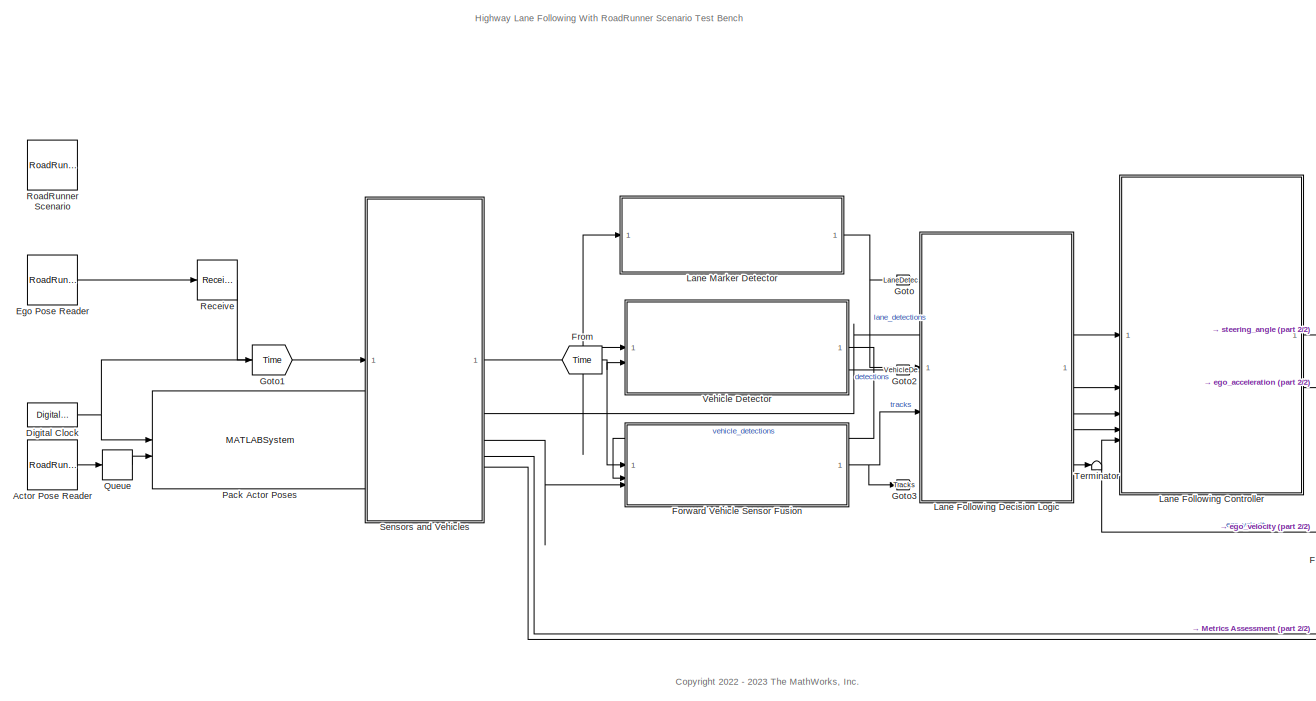
[diagram: root canvas - part 1/2, most of the canvas]
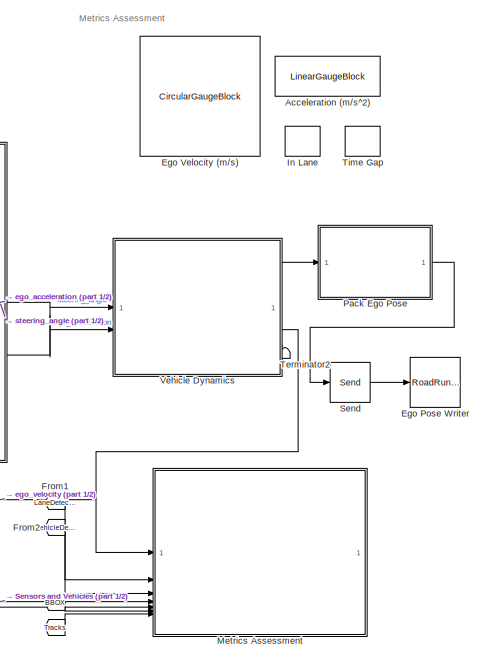
[diagram: root canvas - part 2/2, right side, full height]
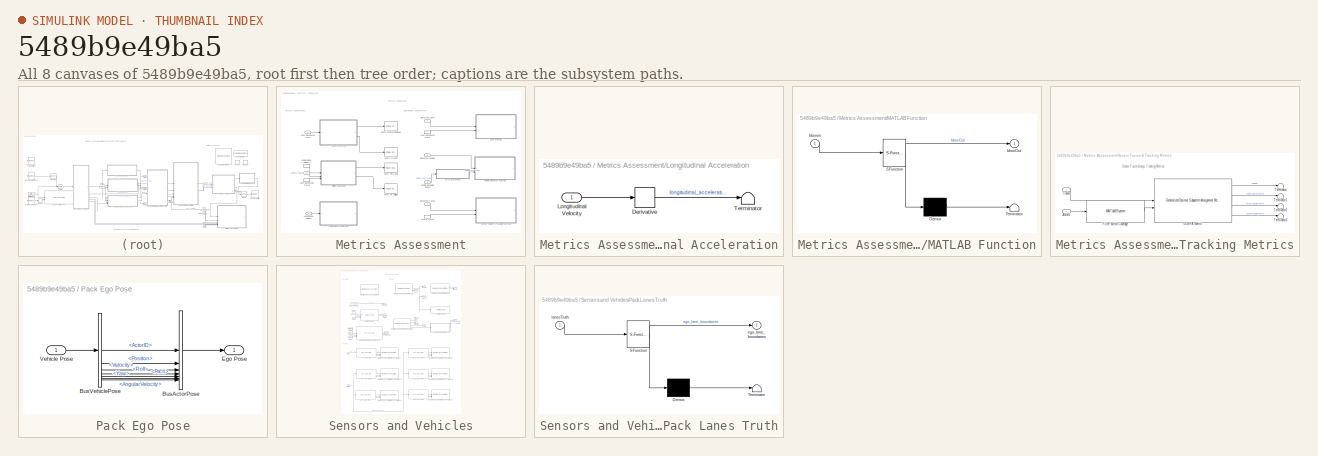
[diagram: thumbnail index - all 8 canvases of the model, root first then tree order]
MODEL slx_5489b9e49ba5
KIND model
CONFIG AbsTol = auto
CONFIG EnableMultiTasking = off
CONFIG FixedStep = auto
CONFIG MaxStep = auto
CONFIG MinStep = auto
CONFIG PostLoadFcn = helperSLHighwayLaneFollowingWithRRSetup()
CONFIG RelTol = 1e-3
CONFIG SampleTimeConstraint = Unconstrained
CONFIG SolverName = ode23tb
CONFIG StartTime = 0.0
CONFIG StopTime = scenario.StopTime
BLOCK [From]  
  GotoTag = BBOX
  TagVisibility = global
BLOCK [From]    
  GotoTag = Tracks
  TagVisibility = global
BLOCK [LinearGaugeBlock] Acceleration (m//s^2)
  LabelPosition = Hide
  ScaleMax = 6
  ScaleMin = -6
BLOCK [Reference] Actor Pose Reader  REF=roadrunnerscenario/RoadRunner Scenario
Reader
  SourceBlock = roadrunnerscenario/RoadRunner Scenario\nReader
BLOCK [DigitalClock] Digital Clock
  SampleTime = Ts
BLOCK [Reference] Ego Pose Reader  REF=roadrunnerscenario/RoadRunner Scenario
Reader
  SourceBlock = roadrunnerscenario/RoadRunner Scenario\nReader
BLOCK [Reference] Ego Pose Writer  REF=roadrunnerscenario/RoadRunner Scenario
Writer
  SourceBlock = roadrunnerscenario/RoadRunner Scenario\nWriter
BLOCK [CircularGaugeBlock] Ego Velocity (m//s)
  LabelPosition = Hide
  ScaleMax = 50
BLOCK [ModelReference] Forward Vehicle Sensor Fusion
  CodeInterface = Top model
  ModelNameDialog = ForwardVehicleSensorFusion.slx
  ModelReferenceVersion = 8.1
  PortSchema = {"entries":[{"content":{"sides":[{"content":{"connectorIds":["In2","In3","In1"]},"type":"ConnectorPlacement.EquallySpacedRectSide","uuid":"7686684e-3ce8-49a8-9c28-78afc562c6cd"},{"content":{"connectorIds":["Out1"],"side":"RIGHT"},"type":"ConnectorPlacement.EquallySpacedRectSide","uuid":"c415bca7-2ba8-48d1-9f28-43832dd5ba4e"},{"content":{"connectorIds":[],"side":"TOP"},"type":"ConnectorPlacement.Eq...<+252ch>
BLOCK [From] From
  GotoTag = Time
BLOCK [From] From1
  GotoTag = LaneDetections
BLOCK [From] From2
  GotoTag = VehicleDetections
  TagVisibility = global
BLOCK [Goto] Goto
  GotoTag = LaneDetections
BLOCK [Goto] Goto1
  GotoTag = Time
BLOCK [Goto] Goto2
  GotoTag = VehicleDetections
  TagVisibility = global
BLOCK [Goto] Goto3
  GotoTag = Tracks
  TagVisibility = global
BLOCK [LampBlock] In Lane
  LabelPosition = Hide
BLOCK [ModelReference] Lane Following Controller
  CodeInterface = Top model
  ModelNameDialog = LaneFollowingController
  ModelReferenceVersion = 8.1
BLOCK [ModelReference] Lane Following Decision Logic
  CodeInterface = Top model
  ModelNameDialog = LaneFollowingDecisionLogic.slx
  ModelReferenceVersion = 7.1
BLOCK [ModelReference] Lane Marker Detector
  CodeInterface = Top model
  ModelNameDialog = LaneMarkerDetector.slx
  ModelReferenceVersion = 6.1
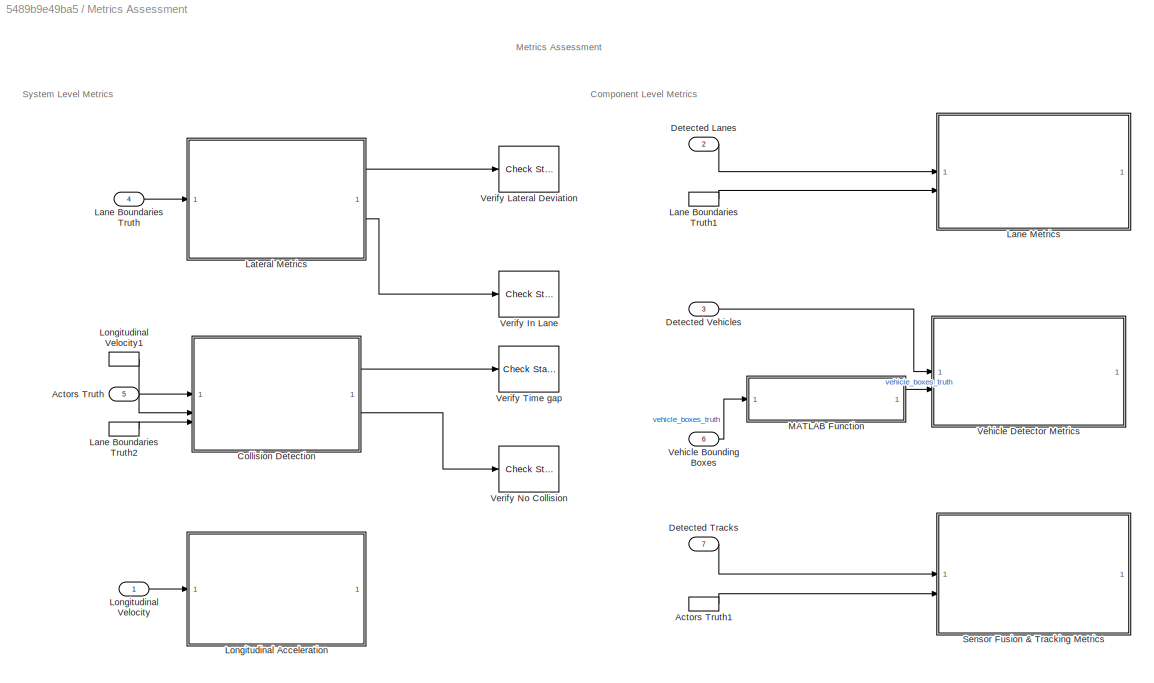
BLOCK [SubSystem] Metrics Assessment
BLOCK [SubSystem] Metrics Assessment/ Vehicle Detector Metrics
  ReferencedSubsystem = VehicleDetectorMetrics
BLOCK [Inport] Metrics Assessment/Actors Truth
  Port = 5
BLOCK [InportShadow] Metrics Assessment/Actors Truth1
  Port = 5
BLOCK [SubSystem] Metrics Assessment/Collision Detection
  ReferencedSubsystem = CollisionDetection
BLOCK [Inport] Metrics Assessment/Detected Lanes
  Port = 2
BLOCK [Inport] Metrics Assessment/Detected Tracks
  Port = 7
BLOCK [Inport] Metrics Assessment/Detected Vehicles
  Port = 3
BLOCK [Inport] Metrics Assessment/Lane Boundaries Truth
  Port = 4
BLOCK [InportShadow] Metrics Assessment/Lane Boundaries Truth1
  Port = 4
BLOCK [InportShadow] Metrics Assessment/Lane Boundaries Truth2
  Port = 4
BLOCK [SubSystem] Metrics Assessment/Lane Metrics
  ReferencedSubsystem = LaneMetrics
BLOCK [SubSystem] Metrics Assessment/Lateral Metrics
  ReferencedSubsystem = LateralMetrics
BLOCK [SubSystem] Metrics Assessment/Longitudinal Acceleration
BLOCK [Derivative] Metrics Assessment/Longitudinal Acceleration/Derivative
BLOCK [Inport] Metrics Assessment/Longitudinal Acceleration/Longitudinal Velocity
BLOCK [Terminator] Metrics Assessment/Longitudinal Acceleration/Terminator
BLOCK [Inport] Metrics Assessment/Longitudinal Velocity
BLOCK [InportShadow] Metrics Assessment/Longitudinal Velocity1
BLOCK [SubSystem] Metrics Assessment/MATLAB Function
  ErrorFcn = Stateflow.Translate.translate
  LibrarySourceBlock = simulink/User-Defined\nFunctions/MATLAB Function
  PermitHierarchicalResolution = ExplicitOnly
  SFBlockType = MATLAB Function
  TreatAsAtomicUnit = on
BLOCK [Demux] Metrics Assessment/MATLAB Function/ Demux 
  Outputs = 1
BLOCK [S-Function] Metrics Assessment/MATLAB Function/ SFunction 
  EnableBusSupport = on
  FunctionName = sf_sfun
  Parameters = camera,range
  PortCounts = [1 2]
  SFcnIsStateOwnerBlock = off
  SFunctionDeploymentMode = off
  Tag = Stateflow S-Function 6
BLOCK [Terminator] Metrics Assessment/MATLAB Function/ Terminator 
BLOCK [Outport] Metrics Assessment/MATLAB Function/bboxOut
BLOCK [Inport] Metrics Assessment/MATLAB Function/bboxes
BLOCK [SubSystem] Metrics Assessment/Sensor Fusion & Tracking Metrics
BLOCK [Inport] Metrics Assessment/Sensor Fusion & Tracking Metrics/Actors
  Port = 2
BLOCK [MATLABSystem] Metrics Assessment/Sensor Fusion & Tracking Metrics/Filter Within Coverage
  Camera = camera
  MaskDisplay = disp('HelperFilterWithinCoverage');\nport_label('input',1,'actors');\nport_label('output',1,'truth');
  MaskType = HelperFilterWithinCoverage
  OutputBusName = BusSimulation3DActors1
  Radar = radar
  System = HelperFilterWithinCoverage
BLOCK [Reference] Metrics Assessment/Sensor Fusion & Tracking Metrics/GOSPA Metric  REF=trackmetricslib/Generalized Optimal Subpattern Assignment Metric
  SourceBlock = trackmetricslib/Generalized Optimal Subpattern Assignment Metric
  SourceType = fusion.simulink.trackGOSPAMetric
BLOCK [Terminator] Metrics Assessment/Sensor Fusion & Tracking Metrics/Terminator
BLOCK [Terminator] Metrics Assessment/Sensor Fusion & Tracking Metrics/Terminator1
BLOCK [Terminator] Metrics Assessment/Sensor Fusion & Tracking Metrics/Terminator2
BLOCK [Terminator] Metrics Assessment/Sensor Fusion & Tracking Metrics/Terminator3
BLOCK [Inport] Metrics Assessment/Sensor Fusion & Tracking Metrics/Tracks
BLOCK [Inport] Metrics Assessment/Vehicle Bounding Boxes
  Port = 6
BLOCK [Reference] Metrics Assessment/Verify In Lane  REF=simulink/Model
Verification/Check 
Static Range
  Description = 1 <= u <= 1
  SourceBlock = simulink/Model\nVerification/Check \nStatic Range
  SourceType = Checks_SRange
BLOCK [Reference] Metrics Assessment/Verify Lateral Deviation  REF=simulink/Model
Verification/Check 
Static Range
  AttributesFormatString = ---------------------------------------\nmax = %<max>\nmin = %<min>
  Description = -assessment.LateralDeviationMax <= u <= assessment.LateralDeviationMax
  SourceBlock = simulink/Model\nVerification/Check \nStatic Range
  SourceType = Checks_SRange
BLOCK [Reference] Metrics Assessment/Verify No Collision  REF=simulink/Model
Verification/Check 
Static Range
  Description = 0 <= u <= 0
  SourceBlock = simulink/Model\nVerification/Check \nStatic Range
  SourceType = Checks_SRange
BLOCK [Reference] Metrics Assessment/Verify Time gap  REF=simulink/Model
Verification/Check Static 
Lower Bound
  AttributesFormatString = ---------------------------------------\nmin = %<min>
  Description = assessment.TimeGap <= u
  SourceBlock = simulink/Model\nVerification/Check Static \nLower Bound
  SourceType = Checks_SMin
BLOCK [MATLABSystem] Pack Actor Poses
  ActorProfiles = actorProfiles
  DefaultActorPoses = Simulink.Bus.createMATLABStruct( "BusActors" )
  EgoActorID = 1
  InputPortMessageModes = n,m
  MaskDisplay = disp(['HelperPack' char(10) 'DrivingScenarioPoses']);\nport_label('input',1,'time');\nport_label('input',2,'msgs');\nport_label('output',1,'TargetPoses');
  MaskType = HelperPackDrivingScenarioPoses
  System = HelperPackDrivingScenarioPoses
BLOCK [SubSystem] Pack Ego Pose
BLOCK [BusCreator] Pack Ego Pose/BusActorPose
  DisplayOption = bar
  InheritFromInputs = off
  Inputs = 7
  NonVirtualBus = on
  OutDataTypeStr = Bus: BusActorPose
BLOCK [BusSelector] Pack Ego Pose/BusVehiclePose
  OutputSignals = ActorID,Position,Velocity,Roll,Pitch,Yaw,AngularVelocity
BLOCK [Outport] Pack Ego Pose/Ego Pose
BLOCK [Inport] Pack Ego Pose/Vehicle Pose
BLOCK [Queue] Queue
  Capacity = numTargetActors+2
  InputPortMap = u0
  InputPortMessageModes = m
  OutputPortMap = o5
  OutputPortMessageModes = m
  OverwriteOldest = on
  QueueType = LIFO
BLOCK [Receive] Receive
  InputPortMap = u0
  InputPortMessageModes = m
  OutputPortMap = o1
  QueueLength = 1
  QueueOverwriting = on
  QueueType = LIFO
  SampleTime = Ts
  UseInternalQueue = off
BLOCK [Reference] RoadRunner Scenario  REF=roadrunnerscenario/RoadRunner Scenario
  SourceBlock = roadrunnerscenario/RoadRunner Scenario
BLOCK [Send] Send
  InputPortMap = u1
  OutputPortMessageModes = m
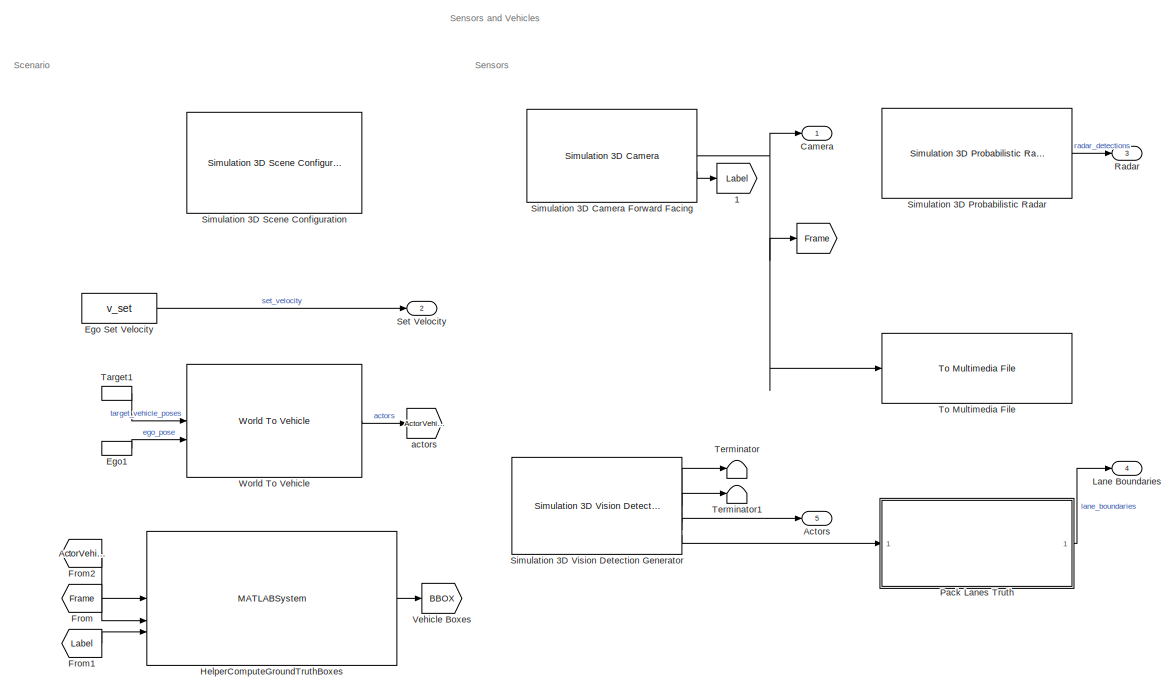
[diagram: Sensors and Vehicles - part 1/2, full width, top band]
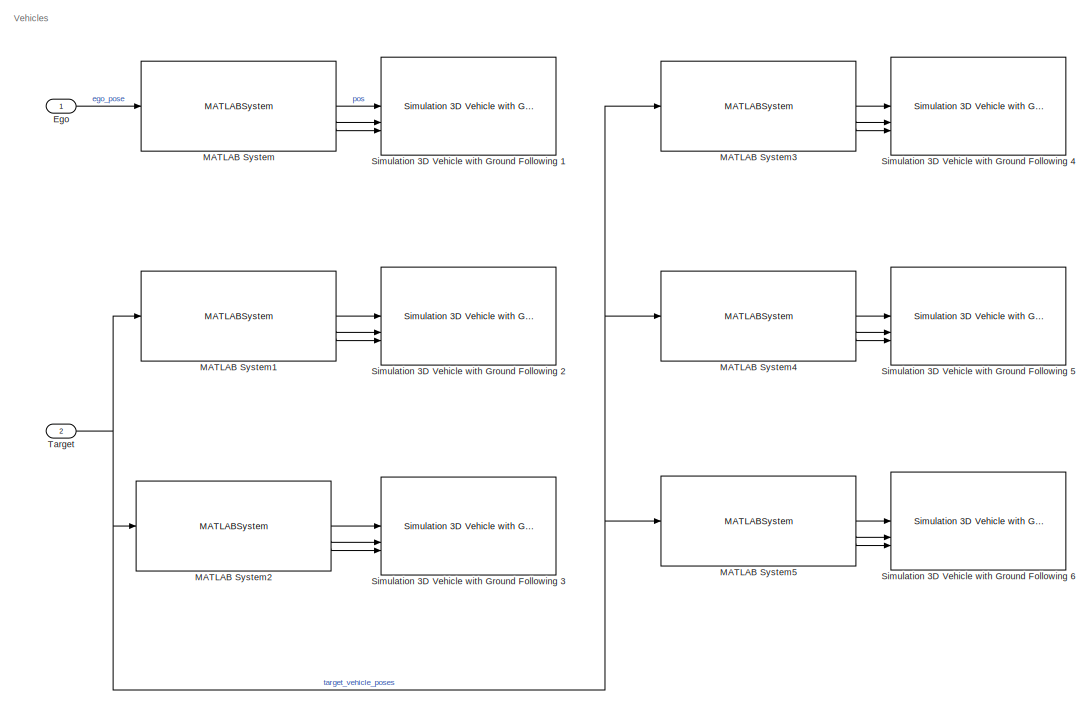
[diagram: Sensors and Vehicles - part 2/2, full width, bottom band]
BLOCK [SubSystem] Sensors and Vehicles
  VariantControl = 1
BLOCK [Goto] Sensors and Vehicles/  
  GotoTag = Frame
  TagVisibility = global
BLOCK [Goto] Sensors and Vehicles/  1
  GotoTag = Label
  TagVisibility = global
BLOCK [Outport] Sensors and Vehicles/Actors
  Port = 5
BLOCK [Outport] Sensors and Vehicles/Camera
  VectorParamsAs1DForOutWhenUnconnected = off
BLOCK [Inport] Sensors and Vehicles/Ego
BLOCK [Constant] Sensors and Vehicles/Ego Set Velocity
  SampleTime = Ts
  Value = v_set
BLOCK [InportShadow] Sensors and Vehicles/Ego1
BLOCK [From] Sensors and Vehicles/From
  GotoTag = Frame
  TagVisibility = global
BLOCK [From] Sensors and Vehicles/From1
  GotoTag = Label
  TagVisibility = global
BLOCK [From] Sensors and Vehicles/From2
  GotoTag = ActorVehicleCord
  TagVisibility = global
BLOCK [MATLABSystem] Sensors and Vehicles/HelperComputeGroundTruthBoxes
  Camera = camera
  MaskDisplay = disp('HelperComputeGroundTruthBoxes');\nport_label('input',1,'actorPositions');\nport_label('input',2,'frame');\nport_label('input',3,'labelledFrame');\nport_label('output',1,'BBoxes');
  MaskType = HelperComputeGroundTruthBoxes
  SimulateUsing = Interpreted execution
  System = HelperComputeGroundTruthBoxes
  VehicleDimensions = actorDimensions
BLOCK [Outport] Sensors and Vehicles/Lane Boundaries
  Port = 4
BLOCK [MATLABSystem] Sensors and Vehicles/MATLAB System
  ActorIDToConvert = 1
  ActorProfiles = actorProfiles
  MaskDisplay = disp(['HelperConvert' char(10) 'DSPoseToSim3D' char(10) 'ActorID: 1']);\nport_label('input',1,'Actor');\nport_label('output',1,'X');\nport_label('output',2,'Y');\nport_label('output',3,'Yaw');
  MaskType = HelperConvertDSPoseToSim3D
  SimulateUsing = Interpreted execution
  System = HelperConvertDSPoseToSim3D
BLOCK [MATLABSystem] Sensors and Vehicles/MATLAB System1
  ActorIDToConvert = 2
  ActorProfiles = actorProfiles
  MaskDisplay = disp(['HelperConvert' char(10) 'DSPoseToSim3D' char(10) 'ActorID: 2']);\nport_label('input',1,'Actor');\nport_label('output',1,'X');\nport_label('output',2,'Y');\nport_label('output',3,'Yaw');
  MaskType = HelperConvertDSPoseToSim3D
  SimulateUsing = Interpreted execution
  System = HelperConvertDSPoseToSim3D
BLOCK [MATLABSystem] Sensors and Vehicles/MATLAB System2
  ActorIDToConvert = 3
  ActorProfiles = actorProfiles
  MaskDisplay = disp(['HelperConvert' char(10) 'DSPoseToSim3D' char(10) 'ActorID: 3']);\nport_label('input',1,'Actor');\nport_label('output',1,'X');\nport_label('output',2,'Y');\nport_label('output',3,'Yaw');
  MaskType = HelperConvertDSPoseToSim3D
  SimulateUsing = Interpreted execution
  System = HelperConvertDSPoseToSim3D
BLOCK [MATLABSystem] Sensors and Vehicles/MATLAB System3
  ActorIDToConvert = 4
  ActorProfiles = actorProfiles
  MaskDisplay = disp(['HelperConvert' char(10) 'DSPoseToSim3D' char(10) 'ActorID: 4']);\nport_label('input',1,'Actor');\nport_label('output',1,'X');\nport_label('output',2,'Y');\nport_label('output',3,'Yaw');
  MaskType = HelperConvertDSPoseToSim3D
  SimulateUsing = Interpreted execution
  System = HelperConvertDSPoseToSim3D
BLOCK [MATLABSystem] Sensors and Vehicles/MATLAB System4
  ActorIDToConvert = 5
  ActorProfiles = actorProfiles
  MaskDisplay = disp(['HelperConvert' char(10) 'DSPoseToSim3D' char(10) 'ActorID: 5']);\nport_label('input',1,'Actor');\nport_label('output',1,'X');\nport_label('output',2,'Y');\nport_label('output',3,'Yaw');
  MaskType = HelperConvertDSPoseToSim3D
  SimulateUsing = Interpreted execution
  System = HelperConvertDSPoseToSim3D
BLOCK [MATLABSystem] Sensors and Vehicles/MATLAB System5
  ActorIDToConvert = 6
  ActorProfiles = actorProfiles
  MaskDisplay = disp(['HelperConvert' char(10) 'DSPoseToSim3D' char(10) 'ActorID: 6']);\nport_label('input',1,'Actor');\nport_label('output',1,'X');\nport_label('output',2,'Y');\nport_label('output',3,'Yaw');
  MaskType = HelperConvertDSPoseToSim3D
  SimulateUsing = Interpreted execution
  System = HelperConvertDSPoseToSim3D
BLOCK [SubSystem] Sensors and Vehicles/Pack Lanes Truth
  ErrorFcn = Stateflow.Translate.translate
  PermitHierarchicalResolution = ExplicitOnly
  SFBlockType = MATLAB Function
  TreatAsAtomicUnit = on
BLOCK [Demux] Sensors and Vehicles/Pack Lanes Truth/ Demux 
  Outputs = 1
BLOCK [S-Function] Sensors and Vehicles/Pack Lanes Truth/ SFunction 
  EnableBusSupport = on
  FunctionName = sf_sfun
  Parameters = boundariesStructObj
  PortCounts = [1 2]
  SFcnIsStateOwnerBlock = off
  SFunctionDeploymentMode = off
  Tag = Stateflow S-Function 2
BLOCK [Terminator] Sensors and Vehicles/Pack Lanes Truth/ Terminator 
BLOCK [Outport] Sensors and Vehicles/Pack Lanes Truth/ego_lane_boundaries
BLOCK [Inport] Sensors and Vehicles/Pack Lanes Truth/lanesTruth
BLOCK [Outport] Sensors and Vehicles/Radar
  NameLocation = right
  Port = 3
  VectorParamsAs1DForOutWhenUnconnected = off
BLOCK [Outport] Sensors and Vehicles/Set Velocity
  Port = 2
  Unit = m/s
  VectorParamsAs1DForOutWhenUnconnected = off
BLOCK [Reference] Sensors and Vehicles/Simulation 3D Camera Forward Facing  REF=sim3dcameralib/Simulation 3D Camera
  AttributesFormatString = -------------------------------------\nImageSize = %<ImageSize>\nOpticalCenter = %<OpticalCenter>\nFocalLength = %<FocalLength>\nRadialDistortion = %<RadialDistortion>\nmountLoc = %<mountLoc>\ntmountOffset = %<tmountOffset>\nrmountOffset = %<rmountOffset>\nPriority = %<Priority>
  LibrarySourceBlock = drivingsim3d/Simulation 3D Camera
  Priority = 1
  SourceBlock = sim3dcameralib/Simulation 3D Camera
  SourceType = Simulation 3D Camera
BLOCK [Reference] Sensors and Vehicles/Simulation 3D Probabilistic Radar  REF=sim3dprobsensorlib/Simulation 3D Probabilistic Radar
  AttributesFormatString = -------------------------------------\nFieldOfView = %<FieldOfView>\nAzimuthResolution = %<AzimuthResolution>\nDetectionCoordinates = %<DetectionCoordinates>\nmountLoc = %<mountLoc>\ntmountOffset = %<tmountOffset>\nrmountOffset = %<rmountOffset>\nPriority = %<Priority>
  LibrarySourceBlock = drivingsim3d/Simulation 3D Probabilistic Radar
  Priority = 1
  SourceBlock = sim3dprobsensorlib/Simulation 3D Probabilistic Radar
  SourceType = Simulation 3D Probabilistic Radar
BLOCK [Reference] Sensors and Vehicles/Simulation 3D Scene Configuration  REF=sim3dlib/Simulation 3D Scene Configuration
  AttributesFormatString = -------------------------------------\nSceneName = %<SceneDesc>\nPriority = %<Priority>
  LibrarySourceBlock = drivingsim3d/Simulation 3D Scene Configuration
  Priority = 0
  SourceBlock = sim3dlib/Simulation 3D Scene Configuration
  SourceType = Simulation 3D Scene Configuration
BLOCK [Reference] Sensors and Vehicles/Simulation 3D Vehicle with Ground Following 1  REF=sim3dautolib/Simulation 3D Vehicle with Ground Following
  AttributesFormatString = --------------------------------------\nActorName = %<ActorName>\nPassVehMesh = %<PassVehMesh>\nVehColor = %<VehColor>\nInitialPos = %<InitialPos>\nInitialRot = %<InitialRot>\nPriority = %<Priority>  <repeated x6 — deduplicated; at blocks: Simulation 3D Vehicle with Ground Following 1, Simulation 3D Vehicle with Ground Following 2, Simulation 3D Vehicle with Ground Following 3, Simulation 3D Vehicle with Ground Following 4, Simulation 3D Vehicle with Ground Following 5, Simulation 3D Vehicle with Ground Following 6>
  LibrarySourceBlock = drivingsim3d/Simulation 3D Vehicle with Ground Following
  Priority = -1
  SourceBlock = sim3dautolib/Simulation 3D Vehicle with Ground Following
  SourceType = Simulation 3D Vehicle with Ground Following
BLOCK [Reference] Sensors and Vehicles/Simulation 3D Vehicle with Ground Following 2  REF=sim3dautolib/Simulation 3D Vehicle with Ground Following
  LibrarySourceBlock = drivingsim3d/Simulation 3D Vehicle with Ground Following
  Priority = -1
  SourceBlock = sim3dautolib/Simulation 3D Vehicle with Ground Following
  SourceType = Simulation 3D Vehicle with Ground Following
BLOCK [Reference] Sensors and Vehicles/Simulation 3D Vehicle with Ground Following 3  REF=sim3dautolib/Simulation 3D Vehicle with Ground Following
  LibrarySourceBlock = drivingsim3d/Simulation 3D Vehicle with Ground Following
  Priority = -1
  SourceBlock = sim3dautolib/Simulation 3D Vehicle with Ground Following
  SourceType = Simulation 3D Vehicle with Ground Following
BLOCK [Reference] Sensors and Vehicles/Simulation 3D Vehicle with Ground Following 4  REF=sim3dautolib/Simulation 3D Vehicle with Ground Following
  LibrarySourceBlock = drivingsim3d/Simulation 3D Vehicle with Ground Following
  Priority = -1
  SourceBlock = sim3dautolib/Simulation 3D Vehicle with Ground Following
  SourceType = Simulation 3D Vehicle with Ground Following
BLOCK [Reference] Sensors and Vehicles/Simulation 3D Vehicle with Ground Following 5  REF=sim3dautolib/Simulation 3D Vehicle with Ground Following
  LibrarySourceBlock = drivingsim3d/Simulation 3D Vehicle with Ground Following
  Priority = -1
  SourceBlock = sim3dautolib/Simulation 3D Vehicle with Ground Following
  SourceType = Simulation 3D Vehicle with Ground Following
BLOCK [Reference] Sensors and Vehicles/Simulation 3D Vehicle with Ground Following 6  REF=sim3dautolib/Simulation 3D Vehicle with Ground Following
  LibrarySourceBlock = drivingsim3d/Simulation 3D Vehicle with Ground Following
  Priority = -1
  SourceBlock = sim3dautolib/Simulation 3D Vehicle with Ground Following
  SourceType = Simulation 3D Vehicle with Ground Following
BLOCK [Reference] Sensors and Vehicles/Simulation 3D Vision Detection Generator  REF=drivingsim3d/Simulation 3D Vision Detection Generator
  AttributesFormatString = imageSize = %<imageSize>\nopticalCenter = %<opticalCenter>\nfocalLength = %<focalLength>\nradialDistortionCoefficients = %<radialDistortionCoefficients>\nmountLoc = %<mountLoc>\ntmountOffset = %<tmountOffset>\nrmountOffset = %<rmountOffset>
  Priority = 1
  SourceBlock = drivingsim3d/Simulation 3D Vision Detection Generator
  SourceType = Simulation 3D Vision Detection Generator
BLOCK [Inport] Sensors and Vehicles/Target
  Port = 2
BLOCK [InportShadow] Sensors and Vehicles/Target1
  Port = 2
BLOCK [Terminator] Sensors and Vehicles/Terminator
BLOCK [Terminator] Sensors and Vehicles/Terminator1
BLOCK [Reference] Sensors and Vehicles/To Multimedia File  REF=dspvision/To Multimedia File
  SourceBlock = dspvision/To Multimedia File
  SourceType = To Multimedia File
BLOCK [Goto] Sensors and Vehicles/Vehicle Boxes
  GotoTag = BBOX
  TagVisibility = global
BLOCK [Reference] Sensors and Vehicles/World To Vehicle  REF=drivingscenarioandsensors/World To Vehicle
  SourceBlock = drivingscenarioandsensors/World To Vehicle
  SourceType = driving.scenario.internal.WorldToVehicle
BLOCK [Goto] Sensors and Vehicles/actors
  GotoTag = ActorVehicleCord
  TagVisibility = global
BLOCK [Terminator] Terminator
BLOCK [Terminator] Terminator2
BLOCK [LampBlock] Time Gap
  LabelPosition = Hide
BLOCK [ModelReference] Vehicle Detector
  CodeInterface = Top model
  ModelNameDialog = VisionVehicleDetector.slx
  ModelReferenceVersion = 7.1
BLOCK [SubSystem] Vehicle Dynamics
  ReferencedSubsystem = BicycleWithForceInput
  VariantControl = Variant2
ANNOTATION (root): <copyright redacted>
ANNOTATION (root): Highway Lane Following With RoadRunner Scenario Test Bench
ANNOTATION (root): Metrics Assessment
ANNOTATION Metrics Assessment: Metrics Assessment
ANNOTATION Metrics Assessment: Component Level Metrics
ANNOTATION Metrics Assessment: System Level Metrics
ANNOTATION Metrics Assessment/Sensor Fusion & Tracking Metrics: Sensor Fusion & Tracking Metrics
ANNOTATION Sensors and Vehicles: Sensors and Vehicles
ANNOTATION Sensors and Vehicles: Scenario
ANNOTATION Sensors and Vehicles: Sensors
ANNOTATION Sensors and Vehicles: Vehicles
LINE    :1 -> Metrics Assessment:7
LINE  :1 -> Metrics Assessment:6
LINE Actor Pose Reader:1 -> Queue:1
NET Digital Clock:1 -> Goto1:1, Pack Actor Poses:1
LINE Ego Pose Reader:1 -> Receive:1
NET Forward Vehicle Sensor Fusion:1 -> Goto3:1, Lane Following Decision Logic:2
LINE From1:1 -> Metrics Assessment:2
LINE From2:1 -> Metrics Assessment:3
NET From:1 -> Forward Vehicle Sensor Fusion:1, Vehicle Detector:2
LINE Lane Following Controller:1 -> Vehicle Dynamics:1
LINE Lane Following Controller:2 -> Vehicle Dynamics:2
LINE Lane Following Decision Logic:1 -> Lane Following Controller:2
LINE Lane Following Decision Logic:2 -> Lane Following Controller:3
LINE Lane Following Decision Logic:3 -> Lane Following Controller:4
LINE Lane Following Decision Logic:4 -> Terminator:1
NET Lane Marker Detector:1 -> Goto:1, Lane Following Decision Logic:1
LINE Metrics Assessment/Actors Truth1:1 -> Metrics Assessment/Sensor Fusion & Tracking Metrics:2
LINE Metrics Assessment/Actors Truth:1 -> Metrics Assessment/Collision Detection:2
LINE Metrics Assessment/Collision Detection:1 -> Metrics Assessment/Verify Time gap:1
LINE Metrics Assessment/Collision Detection:2 -> Metrics Assessment/Verify No Collision:1
LINE Metrics Assessment/Detected Lanes:1 -> Metrics Assessment/Lane Metrics:1
LINE Metrics Assessment/Detected Tracks:1 -> Metrics Assessment/Sensor Fusion & Tracking Metrics:1
LINE Metrics Assessment/Detected Vehicles:1 -> Metrics Assessment/ Vehicle Detector Metrics:1
LINE Metrics Assessment/Lane Boundaries Truth1:1 -> Metrics Assessment/Lane Metrics:2
LINE Metrics Assessment/Lane Boundaries Truth2:1 -> Metrics Assessment/Collision Detection:3
LINE Metrics Assessment/Lane Boundaries Truth:1 -> Metrics Assessment/Lateral Metrics:1
LINE Metrics Assessment/Lateral Metrics:1 -> Metrics Assessment/Verify Lateral Deviation:1
LINE Metrics Assessment/Lateral Metrics:2 -> Metrics Assessment/Verify In Lane:1
LINE Metrics Assessment/Longitudinal Acceleration/Derivative:1 -> Metrics Assessment/Longitudinal Acceleration/Terminator:1
LINE Metrics Assessment/Longitudinal Acceleration/Longitudinal Velocity:1 -> Metrics Assessment/Longitudinal Acceleration/Derivative:1
LINE Metrics Assessment/Longitudinal Velocity1:1 -> Metrics Assessment/Collision Detection:1
LINE Metrics Assessment/Longitudinal Velocity:1 -> Metrics Assessment/Longitudinal Acceleration:1
LINE Metrics Assessment/MATLAB Function:1 -> Metrics Assessment/ Vehicle Detector Metrics:2
LINE Metrics Assessment/Sensor Fusion & Tracking Metrics/Actors:1 -> Metrics Assessment/Sensor Fusion & Tracking Metrics/Filter Within Coverage:1
LINE Metrics Assessment/Sensor Fusion & Tracking Metrics/Filter Within Coverage:1 -> Metrics Assessment/Sensor Fusion & Tracking Metrics/GOSPA Metric:2
LINE Metrics Assessment/Sensor Fusion & Tracking Metrics/GOSPA Metric:1 -> Metrics Assessment/Sensor Fusion & Tracking Metrics/Terminator:1
LINE Metrics Assessment/Sensor Fusion & Tracking Metrics/GOSPA Metric:2 -> Metrics Assessment/Sensor Fusion & Tracking Metrics/Terminator1:1
LINE Metrics Assessment/Sensor Fusion & Tracking Metrics/GOSPA Metric:3 -> Metrics Assessment/Sensor Fusion & Tracking Metrics/Terminator2:1
LINE Metrics Assessment/Sensor Fusion & Tracking Metrics/GOSPA Metric:4 -> Metrics Assessment/Sensor Fusion & Tracking Metrics/Terminator3:1
LINE Metrics Assessment/Sensor Fusion & Tracking Metrics/Tracks:1 -> Metrics Assessment/Sensor Fusion & Tracking Metrics/GOSPA Metric:1
LINE Metrics Assessment/Vehicle Bounding Boxes:1 -> Metrics Assessment/MATLAB Function:1
LINE Pack Actor Poses:1 -> Sensors and Vehicles:2
LINE Pack Ego Pose/BusActorPose:1 -> Pack Ego Pose/Ego Pose:1
LINE Pack Ego Pose/BusVehiclePose:1 -> Pack Ego Pose/BusActorPose:1
LINE Pack Ego Pose/BusVehiclePose:2 -> Pack Ego Pose/BusActorPose:2
LINE Pack Ego Pose/BusVehiclePose:3 -> Pack Ego Pose/BusActorPose:3
LINE Pack Ego Pose/BusVehiclePose:4 -> Pack Ego Pose/BusActorPose:4
LINE Pack Ego Pose/BusVehiclePose:5 -> Pack Ego Pose/BusActorPose:5
LINE Pack Ego Pose/BusVehiclePose:6 -> Pack Ego Pose/BusActorPose:6
LINE Pack Ego Pose/BusVehiclePose:7 -> Pack Ego Pose/BusActorPose:7
LINE Pack Ego Pose/Vehicle Pose:1 -> Pack Ego Pose/BusVehiclePose:1
LINE Pack Ego Pose:1 -> Send:1
LINE Queue:1 -> Pack Actor Poses:2
LINE Receive:1 -> Sensors and Vehicles:1
LINE Send:1 -> Ego Pose Writer:1
LINE Sensors and Vehicles/Ego Set Velocity:1 -> Sensors and Vehicles/Set Velocity:1
LINE Sensors and Vehicles/Ego1:1 -> Sensors and Vehicles/World To Vehicle:2
LINE Sensors and Vehicles/Ego:1 -> Sensors and Vehicles/MATLAB System:1
LINE Sensors and Vehicles/From1:1 -> Sensors and Vehicles/HelperComputeGroundTruthBoxes:3
LINE Sensors and Vehicles/From2:1 -> Sensors and Vehicles/HelperComputeGroundTruthBoxes:1
LINE Sensors and Vehicles/From:1 -> Sensors and Vehicles/HelperComputeGroundTruthBoxes:2
LINE Sensors and Vehicles/HelperComputeGroundTruthBoxes:1 -> Sensors and Vehicles/Vehicle Boxes:1
LINE Sensors and Vehicles/MATLAB System1:1 -> Sensors and Vehicles/Simulation 3D Vehicle with Ground Following 2:1
LINE Sensors and Vehicles/MATLAB System1:2 -> Sensors and Vehicles/Simulation 3D Vehicle with Ground Following 2:2
LINE Sensors and Vehicles/MATLAB System1:3 -> Sensors and Vehicles/Simulation 3D Vehicle with Ground Following 2:3
LINE Sensors and Vehicles/MATLAB System2:1 -> Sensors and Vehicles/Simulation 3D Vehicle with Ground Following 3:1
LINE Sensors and Vehicles/MATLAB System2:2 -> Sensors and Vehicles/Simulation 3D Vehicle with Ground Following 3:2
LINE Sensors and Vehicles/MATLAB System2:3 -> Sensors and Vehicles/Simulation 3D Vehicle with Ground Following 3:3
LINE Sensors and Vehicles/MATLAB System3:1 -> Sensors and Vehicles/Simulation 3D Vehicle with Ground Following 4:1
LINE Sensors and Vehicles/MATLAB System3:2 -> Sensors and Vehicles/Simulation 3D Vehicle with Ground Following 4:2
LINE Sensors and Vehicles/MATLAB System3:3 -> Sensors and Vehicles/Simulation 3D Vehicle with Ground Following 4:3
LINE Sensors and Vehicles/MATLAB System4:1 -> Sensors and Vehicles/Simulation 3D Vehicle with Ground Following 5:1
LINE Sensors and Vehicles/MATLAB System4:2 -> Sensors and Vehicles/Simulation 3D Vehicle with Ground Following 5:2
LINE Sensors and Vehicles/MATLAB System4:3 -> Sensors and Vehicles/Simulation 3D Vehicle with Ground Following 5:3
LINE Sensors and Vehicles/MATLAB System5:1 -> Sensors and Vehicles/Simulation 3D Vehicle with Ground Following 6:1
LINE Sensors and Vehicles/MATLAB System5:2 -> Sensors and Vehicles/Simulation 3D Vehicle with Ground Following 6:2
LINE Sensors and Vehicles/MATLAB System5:3 -> Sensors and Vehicles/Simulation 3D Vehicle with Ground Following 6:3
LINE Sensors and Vehicles/MATLAB System:1 -> Sensors and Vehicles/Simulation 3D Vehicle with Ground Following 1:1
LINE Sensors and Vehicles/MATLAB System:2 -> Sensors and Vehicles/Simulation 3D Vehicle with Ground Following 1:2
LINE Sensors and Vehicles/MATLAB System:3 -> Sensors and Vehicles/Simulation 3D Vehicle with Ground Following 1:3
LINE Sensors and Vehicles/Pack Lanes Truth:1 -> Sensors and Vehicles/Lane Boundaries:1
NET Sensors and Vehicles/Simulation 3D Camera Forward Facing:1 -> Sensors and Vehicles/  :1, Sensors and Vehicles/Camera:1, Sensors and Vehicles/To Multimedia File:1
LINE Sensors and Vehicles/Simulation 3D Camera Forward Facing:2 -> Sensors and Vehicles/  1:1
LINE Sensors and Vehicles/Simulation 3D Probabilistic Radar:1 -> Sensors and Vehicles/Radar:1
LINE Sensors and Vehicles/Simulation 3D Vision Detection Generator:1 -> Sensors and Vehicles/Terminator:1
LINE Sensors and Vehicles/Simulation 3D Vision Detection Generator:2 -> Sensors and Vehicles/Terminator1:1
LINE Sensors and Vehicles/Simulation 3D Vision Detection Generator:3 -> Sensors and Vehicles/Actors:1
LINE Sensors and Vehicles/Simulation 3D Vision Detection Generator:4 -> Sensors and Vehicles/Pack Lanes Truth:1
LINE Sensors and Vehicles/Target1:1 -> Sensors and Vehicles/World To Vehicle:1
NET Sensors and Vehicles/Target:1 -> Sensors and Vehicles/MATLAB System1:1, Sensors and Vehicles/MATLAB System2:1, Sensors and Vehicles/MATLAB System3:1, Sensors and Vehicles/MATLAB System4:1, Sensors and Vehicles/MATLAB System5:1
LINE Sensors and Vehicles/World To Vehicle:1 -> Sensors and Vehicles/actors:1
NET Sensors and Vehicles:1 -> Lane Marker Detector:1, Vehicle Detector:1
LINE Sensors and Vehicles:2 -> Lane Following Controller:1
LINE Sensors and Vehicles:3 -> Forward Vehicle Sensor Fusion:3
LINE Sensors and Vehicles:4 -> Metrics Assessment:4
LINE Sensors and Vehicles:5 -> Metrics Assessment:5
LINE Vehicle Detector:1 -> Forward Vehicle Sensor Fusion:2
LINE Vehicle Detector:2 -> Goto2:1
LINE Vehicle Dynamics:1 -> Pack Ego Pose:1
NET Vehicle Dynamics:2 -> Lane Following Controller:5, Metrics Assessment:1
LINE Vehicle Dynamics:3 -> Terminator2:1
note: NET lines group one-source signal fan-out (src -> all destinations, sorted); 1:1 wires keep LINE
CHART Sensors and Vehicles/Pack Lanes Truth states=1 transitions=1
  STATE_LABEL 'eML_blk_kernel()'
  STATE_LABEL 'SCRIPT:\nfunction ego_lane_boundaries = packLanesTruth(lanesTruth, boundariesStructObj)\n% Assign lane parameters from ground-truth lane boundaries.\n\n\n% Find ego-vehicle lane boundary indices\nlbNum = [1, 1];\nfor j = 1:length(lanesTruth.LaneBoundaries)-1\n    yleftLane = lanesTruth.LaneBoundaries(j+1).Coordinates(1,2);\n    yrightLane = lanesTruth.LaneBoundaries(j).Coordinates(1,2);\n    \n    if ((0 >= ...<+1086ch>'
CHART Metrics Assessment/MATLAB Function states=1 transitions=1
  STATE_LABEL 'eML_blk_kernel()'
  STATE_LABEL 'SCRIPT:\nfunction bboxOut =  filterGroundTruthOutOfRange(bboxes,camera,range)\n    % filterGroundTruthOutOfRange Finds the the bounding boxes of actors,\n    % that are outside the specified range and filter them from the truth. \n    % This helps in evaluating the vehicle detector at specified ranges,\n    % instead of the entire scene. \n    \n    % Define Mono Camera sensor\n    persistent sensor;\n    ...<+956ch>'
CHART  states=0 transitions=0
CHART  states=0 transitions=0
